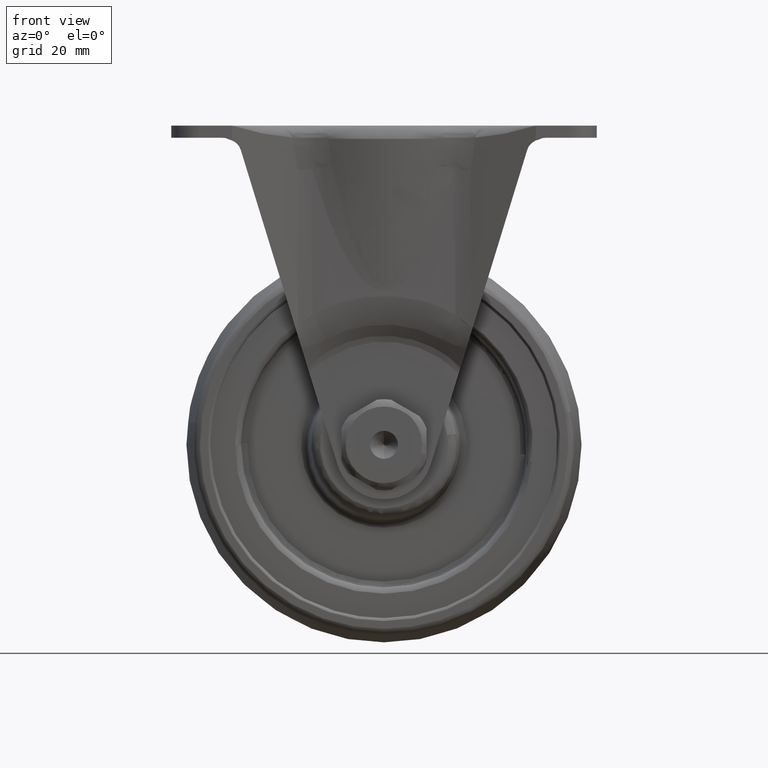
[diagram: clean part render]
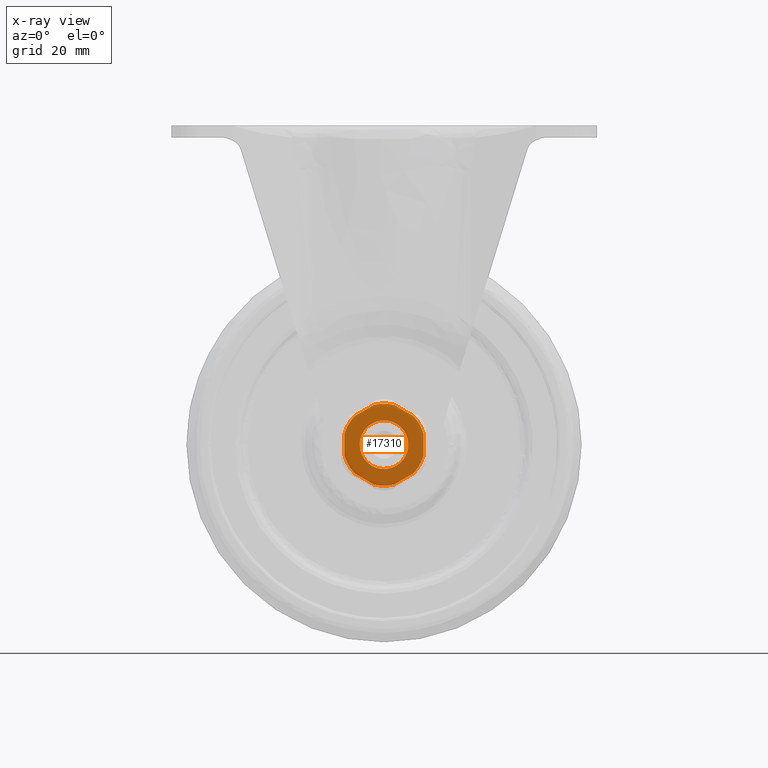
[diagram: x-ray — body ghosted, one internal face saturated and labeled with its STEP entity id]
A machine part, front view, then the same camera in x-ray: the body is ghosted and one INTERNAL B-rep face — a face not visible from any outside direction — is saturated and labeled: STEP entity #17310.
In plain terms, the highlighted face is a freeform B-spline surface patch.
Its self-contained STEP definition (entity closure, byte-faithful):
#13967=CARTESIAN_POINT('',(3.972038933369105,18.005906000000000,-0.472129973366247));
#13968=VERTEX_POINT('',#13967);
#13974=CARTESIAN_POINT('',(0.0,18.005906000000000,4.000000000000002));
#13975=VERTEX_POINT('',#13974);
#13976=CARTESIAN_POINT('',(3.972038933369106,18.005906000000003,-0.472129973366247));
#13977=CARTESIAN_POINT('',(4.000000000000001,18.005906000000000,-0.236892959160239));
#13978=CARTESIAN_POINT('',(4.0,18.005906000000000,1.794263E-015));
#13979=CARTESIAN_POINT('',(4.000000000000000,18.005906000000007,4.000000000000003));
#13980=CARTESIAN_POINT('',(0.0,18.005906000000000,4.000000000000002));
#13988=(BOUNDED_CURVE()B_SPLINE_CURVE(2,(#13976,#13977,#13978,#13979,#13980),.UNSPECIFIED.,.F.,.U.)B_SPLINE_CURVE_WITH_KNOTS((3,2,3),(0.229562769875294,0.250000000000000,0.500000000000000),.UNSPECIFIED.)CURVE()GEOMETRIC_REPRESENTATION_ITEM()RATIONAL_B_SPLINE_CURVE((0.956027335065752,0.976056295540575,1.0,0.707106781186548,1.0))REPRESENTATION_ITEM(''));
#13989=EDGE_CURVE('',#13968,#13975,#13988,.T.);
#13991=CARTESIAN_POINT('',(-3.992539193675571,18.005906000000000,0.244194158333937));
#13992=VERTEX_POINT('',#13991);
#13993=CARTESIAN_POINT('',(0.0,18.005906000000000,4.000000000000002));
#13994=CARTESIAN_POINT('',(-3.762824267255462,18.005906000000000,4.000000000000002));
#13995=CARTESIAN_POINT('',(-3.992539193675571,18.005906000000003,0.244194158333937));
#14003=(BOUNDED_CURVE()B_SPLINE_CURVE(2,(#13993,#13994,#13995),.UNSPECIFIED.,.F.,.U.)B_SPLINE_CURVE_WITH_KNOTS((3,3),(0.500000000000000,0.739332962225156),.UNSPECIFIED.)CURVE()GEOMETRIC_REPRESENTATION_ITEM()RATIONAL_B_SPLINE_CURVE((1.0,0.719603993302862,0.976072041637170))REPRESENTATION_ITEM(''));
#14004=EDGE_CURVE('',#13975,#13992,#14003,.T.);
#14082=CARTESIAN_POINT('',(0.0,18.005906000000000,-3.999999999999998));
#14083=VERTEX_POINT('',#14082);
#14084=CARTESIAN_POINT('',(-3.992539193675571,18.005906000000003,0.244194158333937));
#14085=CARTESIAN_POINT('',(-4.000000000000001,18.005906000000007,0.122211053389410));
#14086=CARTESIAN_POINT('',(-4.0,18.005906000000000,1.794263E-015));
#14087=CARTESIAN_POINT('',(-4.000000000000000,18.005906000000007,-3.999999999999998));
#14088=CARTESIAN_POINT('',(0.0,18.005906000000000,-3.999999999999998));
#14096=(BOUNDED_CURVE()B_SPLINE_CURVE(2,(#14084,#14085,#14086,#14087,#14088),.UNSPECIFIED.,.F.,.U.)B_SPLINE_CURVE_WITH_KNOTS((3,2,3),(0.739332962225156,0.750000000000000,1.0),.UNSPECIFIED.)CURVE()GEOMETRIC_REPRESENTATION_ITEM()RATIONAL_B_SPLINE_CURVE((0.976072041637170,0.987502787883685,1.0,0.707106781186548,1.0))REPRESENTATION_ITEM(''));
#14097=EDGE_CURVE('',#13992,#14083,#14096,.T.);
#14099=CARTESIAN_POINT('',(0.0,18.005906000000000,-3.999999999999998));
#14100=CARTESIAN_POINT('',(3.552704377582967,18.005905999999996,-4.000000000000000));
#14101=CARTESIAN_POINT('',(3.972038933369106,18.005906000000003,-0.472129973366247));
#14109=(BOUNDED_CURVE()B_SPLINE_CURVE(2,(#14099,#14100,#14101),.UNSPECIFIED.,.F.,.U.)B_SPLINE_CURVE_WITH_KNOTS((3,3),(0.0,0.229562769875294),.UNSPECIFIED.)CURVE()GEOMETRIC_REPRESENTATION_ITEM()RATIONAL_B_SPLINE_CURVE((1.0,0.731050485645973,0.956027335065752))REPRESENTATION_ITEM(''));
#14110=EDGE_CURVE('',#14083,#13968,#14109,.T.);
#16077=CARTESIAN_POINT('',(-4.826166831863969,18.005906000000000,4.719165454458040));
#16078=VERTEX_POINT('',#16077);
#16100=CARTESIAN_POINT('',(-1.673832824275485,18.005906000000000,6.539166044069530));
#16101=VERTEX_POINT('',#16100);
#16102=CARTESIAN_POINT('',(-4.826166831863969,18.005906000000000,4.719165454458040));
#16103=CARTESIAN_POINT('',(-1.673832824275485,18.005906000000000,6.539166044069530));
#16104=QUASI_UNIFORM_CURVE('',1,(#16102,#16103),.UNSPECIFIED.,.F.,.U.);
#16105=EDGE_CURVE('',#16078,#16101,#16104,.T.);
#16153=CARTESIAN_POINT('',(1.673829642336460,18.005906000000000,6.539166858550850));
#16154=VERTEX_POINT('',#16153);
#16176=CARTESIAN_POINT('',(4.826169251197100,18.005906000000000,4.719162980268180));
#16177=VERTEX_POINT('',#16176);
#16178=CARTESIAN_POINT('',(1.673829642336460,18.005906000000000,6.539166858550850));
#16179=CARTESIAN_POINT('',(4.826169251197100,18.005906000000000,4.719162980268180));
#16180=QUASI_UNIFORM_CURVE('',1,(#16178,#16179),.UNSPECIFIED.,.F.,.U.);
#16181=EDGE_CURVE('',#16154,#16177,#16180,.T.);
#16214=CARTESIAN_POINT('',(6.500000000000229,18.005906000000000,1.820002438331070));
#16215=VERTEX_POINT('',#16214);
#16216=CARTESIAN_POINT('',(6.500000000000229,18.005906000000000,-1.820002438331065));
#16217=VERTEX_POINT('',#16216);
#16218=CARTESIAN_POINT('',(6.500000000000229,18.005906000000000,1.820002438331070));
#16219=CARTESIAN_POINT('',(6.500000000000229,18.005906000000000,-1.820002438331065));
#16220=QUASI_UNIFORM_CURVE('',1,(#16218,#16219),.UNSPECIFIED.,.F.,.U.);
#16221=EDGE_CURVE('',#16215,#16217,#16220,.T.);
#16316=CARTESIAN_POINT('',(4.826169251196830,18.005906000000000,-4.719162980268450));
#16317=VERTEX_POINT('',#16316);
#16339=CARTESIAN_POINT('',(1.673829642336825,18.005906000000000,-6.539166858550750));
#16340=VERTEX_POINT('',#16339);
#16341=CARTESIAN_POINT('',(4.826169251196830,18.005906000000000,-4.719162980268450));
#16342=CARTESIAN_POINT('',(1.673829642336825,18.005906000000000,-6.539166858550750));
#16343=QUASI_UNIFORM_CURVE('',1,(#16341,#16342),.UNSPECIFIED.,.F.,.U.);
#16344=EDGE_CURVE('',#16317,#16340,#16343,.T.);
#16392=CARTESIAN_POINT('',(-1.673832824275785,18.005906000000000,-6.539166044069449));
#16393=VERTEX_POINT('',#16392);
#16415=CARTESIAN_POINT('',(-4.826166831863850,18.005906000000000,-4.719165454458150));
#16416=VERTEX_POINT('',#16415);
#16417=CARTESIAN_POINT('',(-1.673832824275785,18.005906000000000,-6.539166044069449));
#16418=CARTESIAN_POINT('',(-4.826166831863850,18.005906000000000,-4.719165454458150));
#16419=QUASI_UNIFORM_CURVE('',1,(#16417,#16418),.UNSPECIFIED.,.F.,.U.);
#16420=EDGE_CURVE('',#16393,#16416,#16419,.T.);
#16453=CARTESIAN_POINT('',(-6.499999999999770,18.005906000000000,-1.820002438332690));
#16454=VERTEX_POINT('',#16453);
#16455=CARTESIAN_POINT('',(-6.499999999999770,18.005906000000000,1.820002438332695));
#16456=VERTEX_POINT('',#16455);
#16457=CARTESIAN_POINT('',(-6.499999999999770,18.005906000000000,-1.820002438332690));
#16458=CARTESIAN_POINT('',(-6.499999999999770,18.005906000000000,1.820002438332695));
#16459=QUASI_UNIFORM_CURVE('',1,(#16457,#16458),.UNSPECIFIED.,.F.,.U.);
#16460=EDGE_CURVE('',#16454,#16456,#16459,.T.);
#17088=CARTESIAN_POINT('',(-6.499999999999774,18.005906000000000,-1.820002438332690));
#17089=CARTESIAN_POINT('',(-6.034133318288173,18.005906000000003,-3.483809786799418));
#17090=CARTESIAN_POINT('',(-4.826166831863854,18.005906000000000,-4.719165454458149));
#17098=(BOUNDED_CURVE()B_SPLINE_CURVE(2,(#17088,#17089,#17090),.UNSPECIFIED.,.F.,.U.)CURVE()GEOMETRIC_REPRESENTATION_ITEM()QUASI_UNIFORM_CURVE()RATIONAL_B_SPLINE_CURVE((1.0,0.968766313227062,1.0))REPRESENTATION_ITEM(''));
#17099=EDGE_CURVE('',#16454,#16416,#17098,.T.);
#17124=CARTESIAN_POINT('',(-1.673832824275785,18.005906000000000,-6.539166044069451));
#17125=CARTESIAN_POINT('',(-0.000001695210918,18.005905999999996,-6.967617236047414));
#17126=CARTESIAN_POINT('',(1.673829642336824,18.005906000000000,-6.539166858550756));
#17134=(BOUNDED_CURVE()B_SPLINE_CURVE(2,(#17124,#17125,#17126),.UNSPECIFIED.,.F.,.U.)CURVE()GEOMETRIC_REPRESENTATION_ITEM()QUASI_UNIFORM_CURVE()RATIONAL_B_SPLINE_CURVE((1.0,0.968766368955295,1.0))REPRESENTATION_ITEM(''));
#17135=EDGE_CURVE('',#16393,#16340,#17134,.T.);
#17160=CARTESIAN_POINT('',(4.826169251196831,18.005906000000000,-4.719162980268450));
#17161=CARTESIAN_POINT('',(6.034133815378133,18.005906000000000,-3.483808011482111));
#17162=CARTESIAN_POINT('',(6.500000000000227,18.005906000000000,-1.820002438331065));
#17170=(BOUNDED_CURVE()B_SPLINE_CURVE(2,(#17160,#17161,#17162),.UNSPECIFIED.,.F.,.U.)CURVE()GEOMETRIC_REPRESENTATION_ITEM()QUASI_UNIFORM_CURVE()RATIONAL_B_SPLINE_CURVE((1.0,0.968766376790714,1.0))REPRESENTATION_ITEM(''));
#17171=EDGE_CURVE('',#16317,#16217,#17170,.T.);
#17196=CARTESIAN_POINT('',(6.500000000000227,18.005906000000000,1.820002438331069));
#17197=CARTESIAN_POINT('',(6.034133815378189,18.005906000000003,3.483808011481917));
#17198=CARTESIAN_POINT('',(4.826169251197101,18.005906000000000,4.719162980268179));
#17206=(BOUNDED_CURVE()B_SPLINE_CURVE(2,(#17196,#17197,#17198),.UNSPECIFIED.,.F.,.U.)CURVE()GEOMETRIC_REPRESENTATION_ITEM()QUASI_UNIFORM_CURVE()RATIONAL_B_SPLINE_CURVE((1.0,0.968766376790721,1.0))REPRESENTATION_ITEM(''));
#17207=EDGE_CURVE('',#16215,#16177,#17206,.T.);
#17230=CARTESIAN_POINT('',(-4.826166831863966,18.005906000000000,4.719165454458039));
#17231=CARTESIAN_POINT('',(-6.034133318288195,18.005906000000000,3.483809786799342));
#17232=CARTESIAN_POINT('',(-6.499999999999773,18.005906000000000,1.820002438332696));
#17240=(BOUNDED_CURVE()B_SPLINE_CURVE(2,(#17230,#17231,#17232),.UNSPECIFIED.,.F.,.U.)CURVE()GEOMETRIC_REPRESENTATION_ITEM()QUASI_UNIFORM_CURVE()RATIONAL_B_SPLINE_CURVE((1.0,0.968766313227065,1.0))REPRESENTATION_ITEM(''));
#17241=EDGE_CURVE('',#16078,#16456,#17240,.T.);
#17268=CARTESIAN_POINT('',(1.673829642336461,18.005906000000000,6.539166858550852));
#17269=CARTESIAN_POINT('',(-0.000001695210952,18.005906000000003,6.967617236047326));
#17270=CARTESIAN_POINT('',(-1.673832824275484,18.005906000000000,6.539166044069532));
#17278=(BOUNDED_CURVE()B_SPLINE_CURVE(2,(#17268,#17269,#17270),.UNSPECIFIED.,.F.,.U.)CURVE()GEOMETRIC_REPRESENTATION_ITEM()QUASI_UNIFORM_CURVE()RATIONAL_B_SPLINE_CURVE((1.0,0.968766368955307,1.0))REPRESENTATION_ITEM(''));
#17279=EDGE_CURVE('',#16154,#16101,#17278,.T.);
#17285=CARTESIAN_POINT('',(-7.149349974803249,18.005906000000000,7.424317676277196));
#17286=CARTESIAN_POINT('',(-7.149349974803249,18.005906000000000,-7.424317917675764));
#17287=CARTESIAN_POINT('',(7.149350323490880,18.005906000000000,7.424317676277196));
#17288=CARTESIAN_POINT('',(7.149350323490880,18.005906000000000,-7.424317917675764));
#17289=B_SPLINE_SURFACE_WITH_KNOTS('',1,1,((#17285,#17287),(#17286,#17288)),.UNSPECIFIED.,.F.,.F.,.U.,(2,2),(2,2),(0.0,14.848635593952960),(0.0,14.298700298294129),.UNSPECIFIED.);
#17290=ORIENTED_EDGE('',*,*,#17279,.T.);
#17291=ORIENTED_EDGE('',*,*,#16105,.F.);
#17292=ORIENTED_EDGE('',*,*,#17241,.T.);
#17293=ORIENTED_EDGE('',*,*,#16460,.F.);
#17294=ORIENTED_EDGE('',*,*,#17099,.T.);
#17295=ORIENTED_EDGE('',*,*,#16420,.F.);
#17296=ORIENTED_EDGE('',*,*,#17135,.T.);
#17297=ORIENTED_EDGE('',*,*,#16344,.F.);
#17298=ORIENTED_EDGE('',*,*,#17171,.T.);
#17299=ORIENTED_EDGE('',*,*,#16221,.F.);
#17300=ORIENTED_EDGE('',*,*,#17207,.T.);
#17301=ORIENTED_EDGE('',*,*,#16181,.F.);
#17302=EDGE_LOOP('',(#17290,#17291,#17292,#17293,#17294,#17295,#17296,#17297,#17298,#17299,#17300,#17301));
#17303=FACE_OUTER_BOUND('',#17302,.T.);
#17304=ORIENTED_EDGE('',*,*,#14004,.F.);
#17305=ORIENTED_EDGE('',*,*,#13989,.F.);
#17306=ORIENTED_EDGE('',*,*,#14110,.F.);
#17307=ORIENTED_EDGE('',*,*,#14097,.F.);
#17308=EDGE_LOOP('',(#17304,#17305,#17306,#17307));
#17309=FACE_BOUND('',#17308,.T.);
#17310=ADVANCED_FACE('',(#17303,#17309),#17289,.T.);